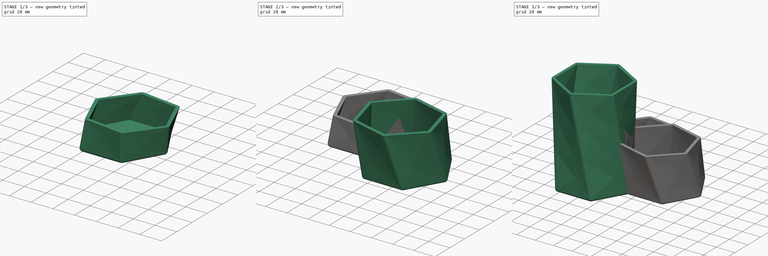
[diagram: build sequence overview — one tinted view per stage of 3, left to right]
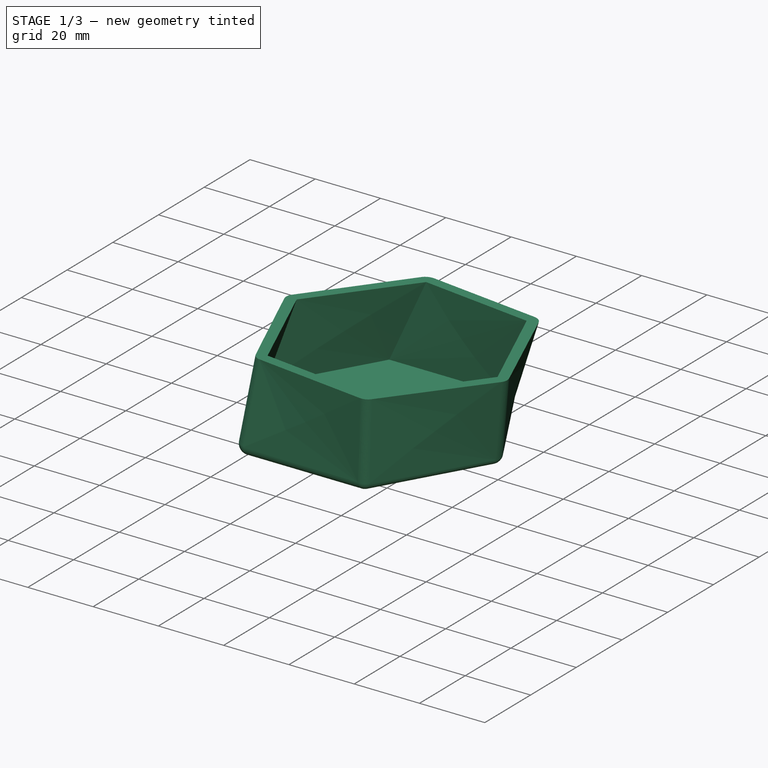
[diagram: stage 1 of 3 — iso view after this stage's code; geometry added in this stage tinted green]
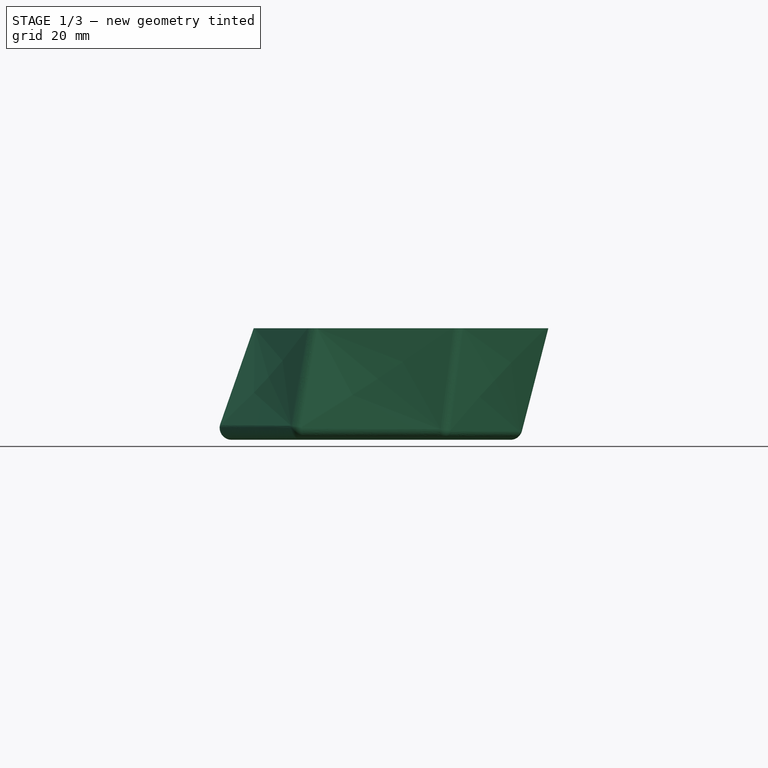
[diagram: stage 1 of 3 — front view after this stage's code; geometry added in this stage tinted green]
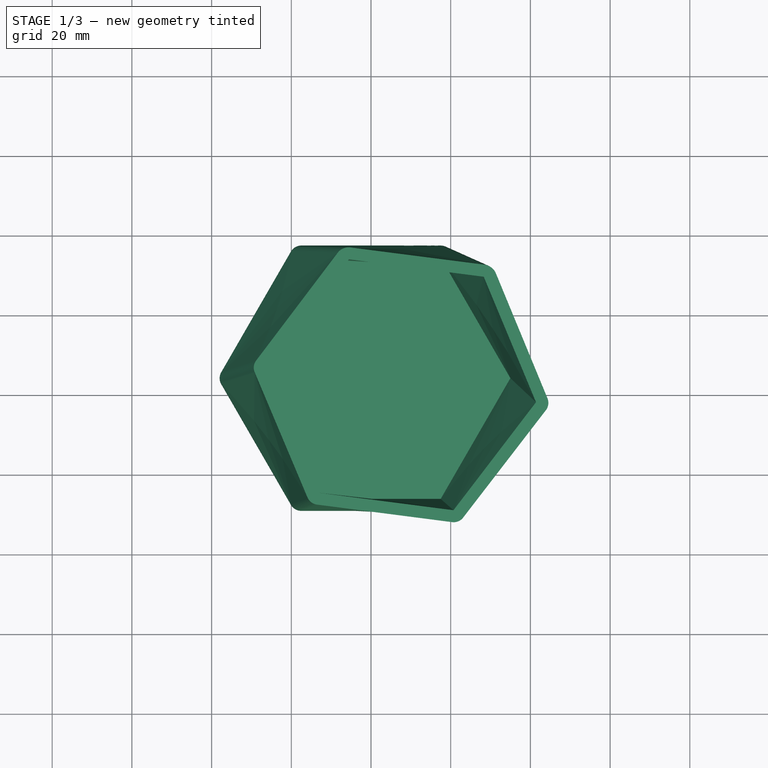
[diagram: stage 1 of 3 — top view after this stage's code; geometry added in this stage tinted green]
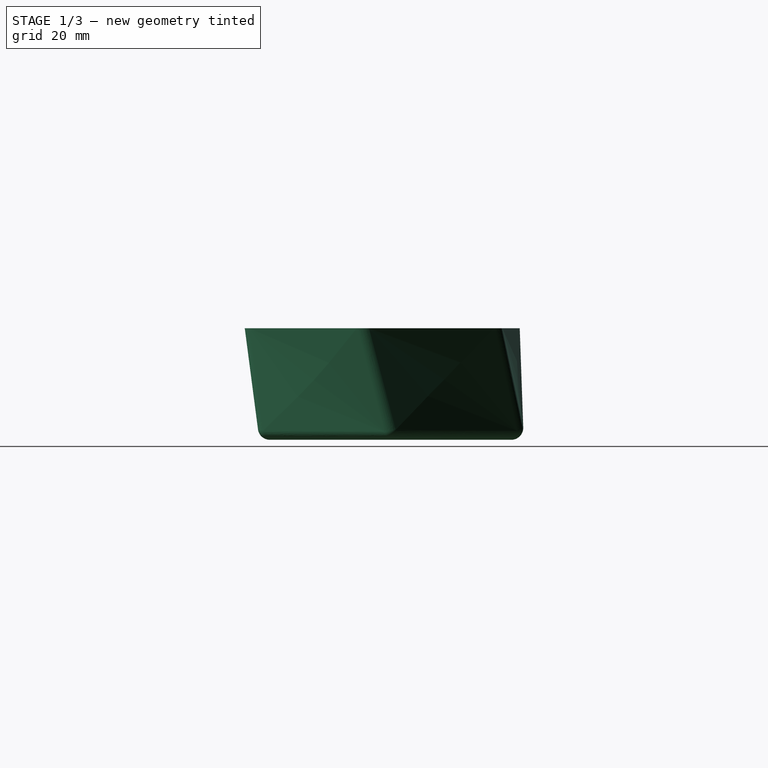
[diagram: stage 1 of 3 — right view after this stage's code; geometry added in this stage tinted green]
FCSTD DOCUMENT  (FreeCAD 0.19R24267 +99 (Git))
Label: 笔筒
License: All rights reserved
LicenseURL: http://en.wikipedia.org/wiki/All_rights_reserved
objects: Sketcher::SketchObject×6, PartDesign::Plane×3, PartDesign::Body×3, Part::Loft×3, Part::Thickness×3
note: 18 computed .brp shape members not serialized (recipe doc carries the construction recipe); baked Part::Feature solids carry a one-line shape summary decoded from their .brp

FEATURE [Sketcher::SketchObject] Sketch004
  FullyConstrained = false
  MapMode = 5
  Support = -> [XY_Plane002]
  sketch-geometry (9):
    g0: LineSegment StartX=-17.4938 StartY=30.3769 StartZ=0 EndX=17.485 EndY=30.3769 EndZ=0
    g1: LineSegment StartX=17.485 StartY=30.3769 StartZ=0 EndX=35.2119 EndY=60.7254 EndZ=0
    g2: LineSegment StartX=17.485 StartY=30.3769 StartZ=0 EndX=34.9745 EndY=60.6695 EndZ=0
    g3: LineSegment StartX=34.9745 StartY=60.6695 StartZ=0 EndX=17.485 EndY=90.9621 EndZ=0
    g4: LineSegment StartX=17.485 StartY=90.9621 StartZ=0 EndX=-17.4938 EndY=90.9621 EndZ=0
    g5: LineSegment StartX=-17.4938 StartY=90.9621 StartZ=0 EndX=-34.9832 EndY=60.6695 EndZ=0
    g6: LineSegment StartX=-34.9832 StartY=60.6695 StartZ=0 EndX=-17.4938 EndY=30.3769 EndZ=0
    g7: LineSegment StartX=-17.4938 StartY=30.3769 StartZ=0 EndX=17.485 EndY=30.3769 EndZ=0
    g8: Circle CenterX=-0.0043755 CenterY=60.6695 CenterZ=0 NormalX=0 NormalY=0 NormalZ=1 AngleXU=0 Radius=34.9788
  constraints (20):
    c: Horizontal(g0)
    c: Coincident(g0,g1)
    c: DistanceX(g0) = -17.4938
    c: DistanceY(g0) = 30.3769
    c: DistanceX(g0) = 17.485
    c: Coincident(g2,g3)
    c: Coincident(g3,g4)
    c: Coincident(g4,g5)
    c: Coincident(g5,g6)
    c: Coincident(g6,g7)
    c: Coincident(g7,g2)
    c: Equal(g2, g3-g7) x5
    c: PointOnObject(g2,g8)
    c: PointOnObject(g3,g8)
    c: PointOnObject(g4,g8)
    c: PointOnObject(g5,g8)
    c: PointOnObject(g6,g8)
    c: PointOnObject(g7,g8)
    c: Coincident(g6,g0)
    c: Coincident(g2,g0)
FEATURE [PartDesign::Plane] DatumPlane002
  AttachmentOffset = pos=(0,0,25) rot=(0,0,1;0rad)
  Length = 87.9715
  MapMode = 5
  Placement = pos=(0,0,25) rot=(0,0,1;0rad)
  ResizeMode = 0
  Support = -> [XY_Plane002]
  Width = 133.976
FEATURE [Sketcher::SketchObject] Sketch005
  FullyConstrained = true
  MapMode = 5
  Placement = pos=(0,0,25) rot=(0,0,1;0rad)
  Support = -> [DatumPlane002]
  sketch-geometry (9):
    g0: GeomPoint X=-13.1246 Y=31.4838 Z=0
    g1: GeomPoint X=20.7032 Y=27.1078 Z=0
    g2: LineSegment StartX=20.7032 StartY=27.1078 StartZ=0 EndX=41.4068 EndY=54.2155 EndZ=0
    g3: LineSegment StartX=41.4068 StartY=54.2155 StartZ=0 EndX=28.2826 EndY=85.6992 EndZ=0
    g4: LineSegment StartX=28.2826 StartY=85.6992 StartZ=0 EndX=-5.54517 EndY=90.0752 EndZ=0
    g5: LineSegment StartX=-5.54517 StartY=90.0752 StartZ=0 EndX=-26.2488 EndY=62.9675 EndZ=0
    g6: LineSegment StartX=-26.2488 StartY=62.9675 StartZ=0 EndX=-13.1246 EndY=31.4838 EndZ=0
    g7: LineSegment StartX=-13.1246 StartY=31.4838 StartZ=0 EndX=20.7032 EndY=27.1078 EndZ=0
    g8: Circle CenterX=7.579 CenterY=58.5915 CenterZ=0 NormalX=0 NormalY=0 NormalZ=1 AngleXU=0 Radius=34.1097
  constraints (19):
    c: DistanceX(g0) = -13.1246
    c: DistanceY(g0) = 31.4838
    c: DistanceX(g1) = 20.7032
    c: DistanceY(g1) = 27.1078
    c: Coincident(g2,g3)
    c: Coincident(g3,g4)
    c: Coincident(g4,g5)
    c: Coincident(g5,g6)
    c: Coincident(g6,g7)
    c: Coincident(g7,g2)
    c: Equal(g2, g3-g7) x5
    c: PointOnObject(g2,g8)
    c: PointOnObject(g3,g8)
    c: PointOnObject(g4,g8)
    c: PointOnObject(g5,g8)
    c: PointOnObject(g6,g8)
    c: PointOnObject(g7,g8)
    c: Coincident(g6,g0)
    c: Coincident(g2,g1)
FEATURE [PartDesign::Body] Body002
  Group = -> [Sketch004,DatumPlane002,Sketch005]
  Origin = -> Origin002
FEATURE [Part::Loft] Loft002
  Closed = false
  MaxDegree = 5
  Ruled = false
  Sections = -> [Sketch004,Sketch005]
  Solid = true
FEATURE [Part::Thickness] Thickness002
  Faces = -> Loft002 [Face8]
  Intersection = false
  Join = 0
  Mode = 0
  Placement = pos=(0,3.6,0) rot=(0,0,1;0rad)
  SelfIntersection = false
  Value = 3
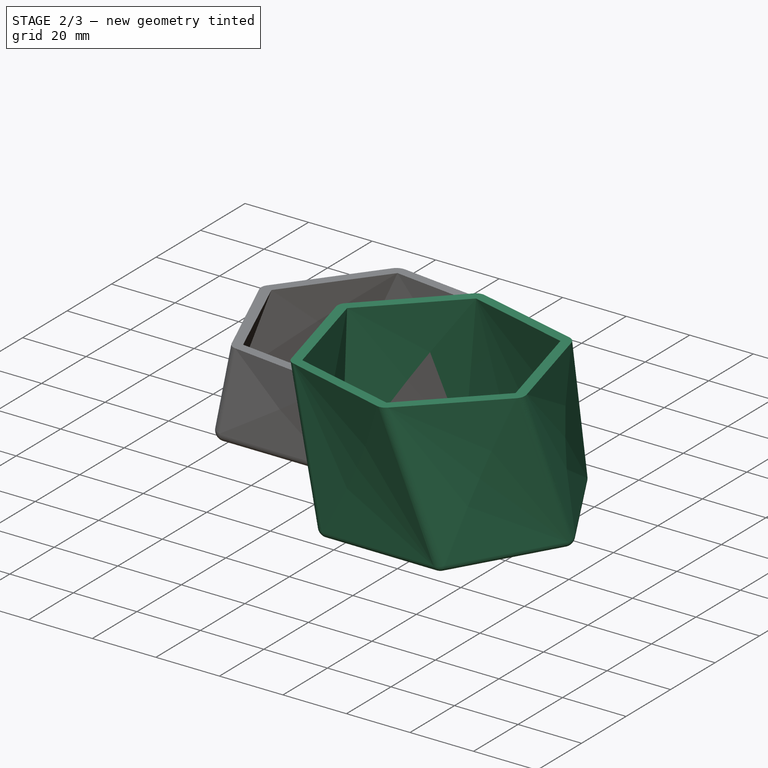
[diagram: stage 2 of 3 — iso view after this stage's code; geometry added in this stage tinted green]
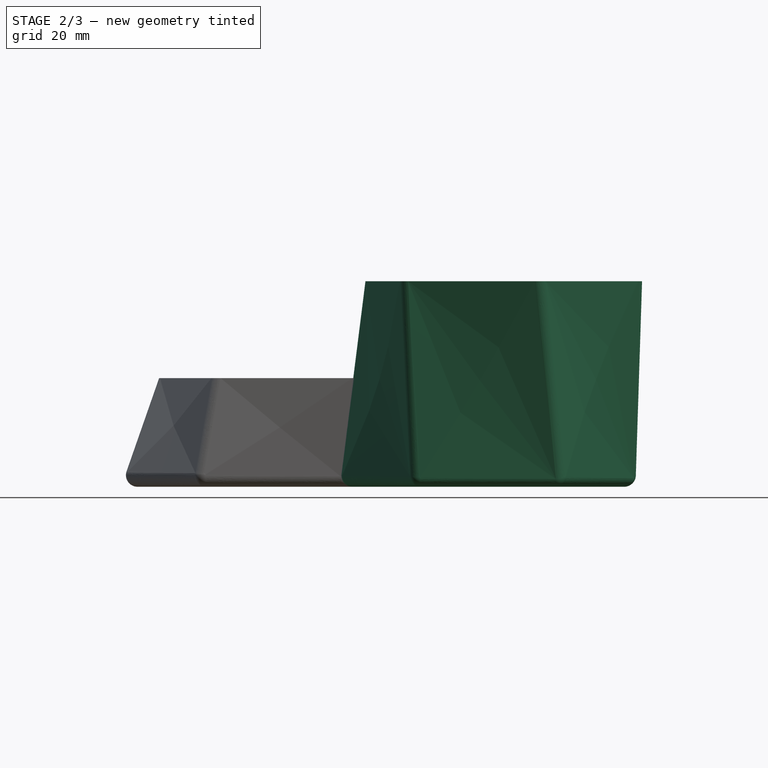
[diagram: stage 2 of 3 — front view after this stage's code; geometry added in this stage tinted green]
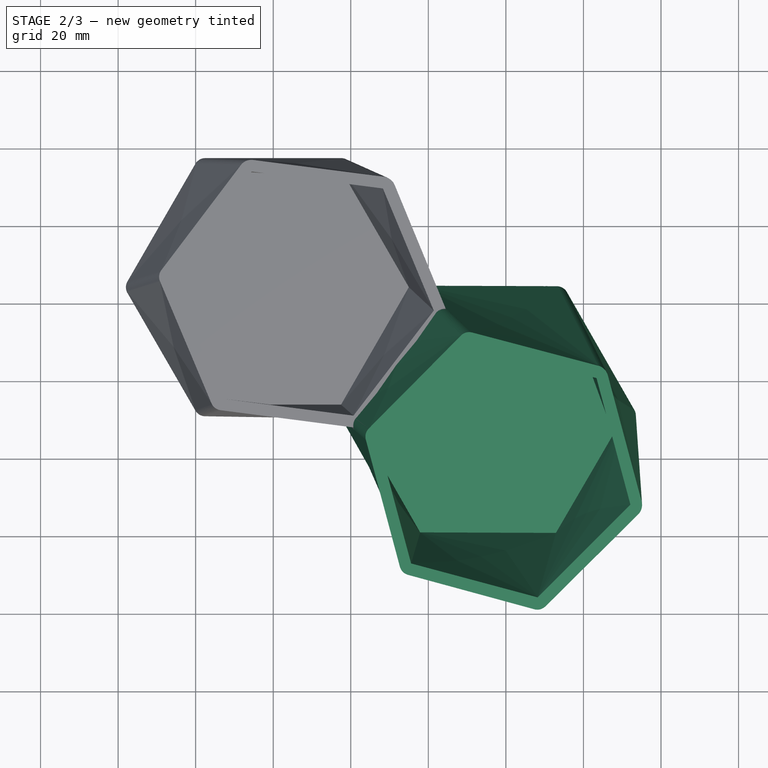
[diagram: stage 2 of 3 — top view after this stage's code; geometry added in this stage tinted green]
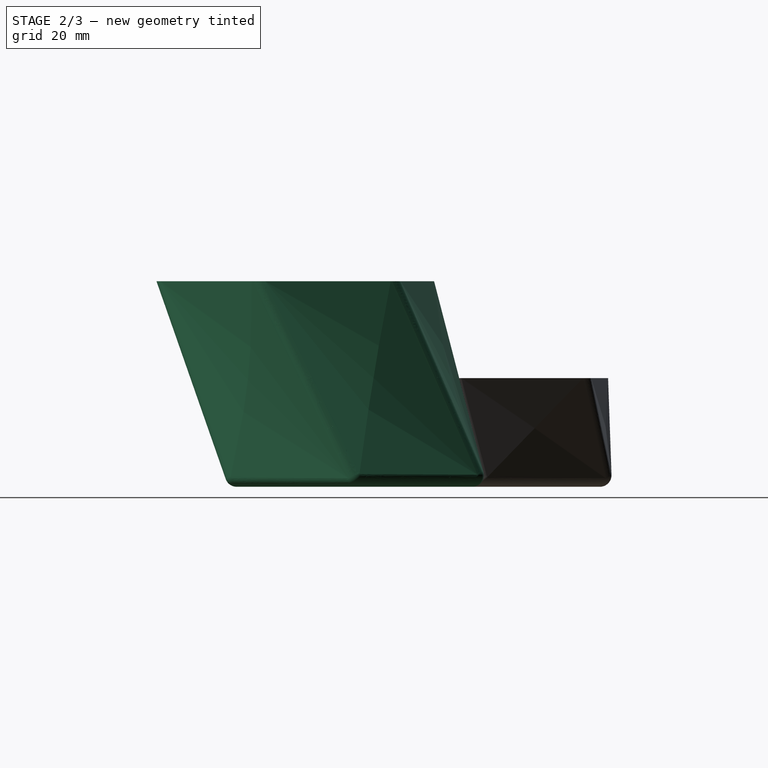
[diagram: stage 2 of 3 — right view after this stage's code; geometry added in this stage tinted green]
FEATURE [Sketcher::SketchObject] Sketch002
  FullyConstrained = false
  MapMode = 5
  Support = -> [XY_Plane001]
  sketch-geometry (7):
    g0: LineSegment StartX=87.6105 StartY=30.2446 StartZ=0 EndX=70.2252 EndY=60.6213 EndZ=0
    g1: LineSegment StartX=70.2252 StartY=60.6213 StartZ=0 EndX=35.2254 EndY=60.7536 EndZ=0
    g2: LineSegment StartX=35.2254 StartY=60.7536 StartZ=0 EndX=17.611 EndY=30.509 EndZ=0
    g3: LineSegment StartX=17.611 StartY=30.509 StartZ=0 EndX=34.9964 EndY=0.13221 EndZ=0
    g4: LineSegment StartX=34.9964 StartY=0.13221 StartZ=0 EndX=69.9962 EndY=0 EndZ=0
    g5: LineSegment StartX=69.9962 StartY=0 StartZ=0 EndX=87.6105 EndY=30.2446 EndZ=0
    g6: Circle CenterX=52.6108 CenterY=30.3768 CenterZ=0 NormalX=0 NormalY=0 NormalZ=1 AngleXU=0 Radius=35
  constraints (15):
    c: Coincident(g0,g1)
    c: Coincident(g1,g2)
    c: Coincident(g2,g3)
    c: Coincident(g3,g4)
    c: Coincident(g4,g5)
    c: Coincident(g5,g0)
    c: Equal(g0, g1-g5) x5
    c: PointOnObject(g0,g6)
    c: PointOnObject(g1,g6)
    c: PointOnObject(g2,g6)
    c: PointOnObject(g3,g6)
    c: PointOnObject(g4,g6)
    c: PointOnObject(g5,g6)
    c: Distance(g2,g0) = 70
    c: PointOnObject(g4,g-1)
FEATURE [PartDesign::Plane] DatumPlane001
  AttachmentOffset = pos=(0,0,50) rot=(0,0,1;0rad)
  Length = 134.01
  MapMode = 5
  Placement = pos=(0,0,50) rot=(0,0,1;0rad)
  ResizeMode = 0
  Support = -> [XY_Plane001]
  Width = 105.547
FEATURE [Sketcher::SketchObject] Sketch003
  FullyConstrained = true
  MapMode = 5
  Placement = pos=(0,0,50) rot=(0,0,1;0rad)
  Support = -> [DatumPlane001]
  sketch-geometry (7):
    g0: LineSegment StartX=65.3109 StartY=-17.5001 StartZ=0 EndX=89.2163 EndY=6.40534 EndZ=0
    g1: LineSegment StartX=89.2163 StartY=6.40534 StartZ=0 EndX=80.4664 EndY=39.0608 EndZ=0
    g2: LineSegment StartX=80.4664 StartY=39.0608 StartZ=0 EndX=47.8109 EndY=47.8108 EndZ=0
    g3: LineSegment StartX=47.8109 StartY=47.8108 StartZ=0 EndX=23.9055 EndY=23.9054 EndZ=0
    g4: LineSegment StartX=23.9055 StartY=23.9054 StartZ=0 EndX=32.6554 EndY=-8.75004 EndZ=0
    g5: LineSegment StartX=32.6554 StartY=-8.75004 StartZ=0 EndX=65.3109 EndY=-17.5001 EndZ=0
    g6: Circle CenterX=56.5609 CenterY=15.1554 CenterZ=0 NormalX=0 NormalY=0 NormalZ=1 AngleXU=0 Radius=33.8074
  constraints (17):
    c: Coincident(g0,g1)
    c: Coincident(g1,g2)
    c: Coincident(g2,g3)
    c: Coincident(g3,g4)
    c: Coincident(g4,g5)
    c: Coincident(g5,g0)
    c: Equal(g0, g1-g5) x5
    c: PointOnObject(g0,g6)
    c: PointOnObject(g1,g6)
    c: PointOnObject(g2,g6)
    c: PointOnObject(g3,g6)
    c: PointOnObject(g4,g6)
    c: PointOnObject(g5,g6)
    c: DistanceX(g3) = 23.9055
    c: DistanceY(g3) = 23.9054
    c: DistanceX(g4) = 32.6554
    c: DistanceY(g4) = -8.75004
FEATURE [PartDesign::Body] Body001
  Group = -> [Sketch002,DatumPlane001,Sketch003]
  Origin = -> Origin001
FEATURE [Part::Loft] Loft001
  Closed = false
  MaxDegree = 5
  Ruled = false
  Sections = -> [Sketch002,Sketch003]
  Solid = true
FEATURE [Part::Thickness] Thickness001
  Faces = -> Loft001 [Face8]
  Intersection = false
  Join = 0
  Mode = 0
  Placement = pos=(2.9,0.9,0) rot=(0,0,1;0rad)
  SelfIntersection = false
  Value = 3
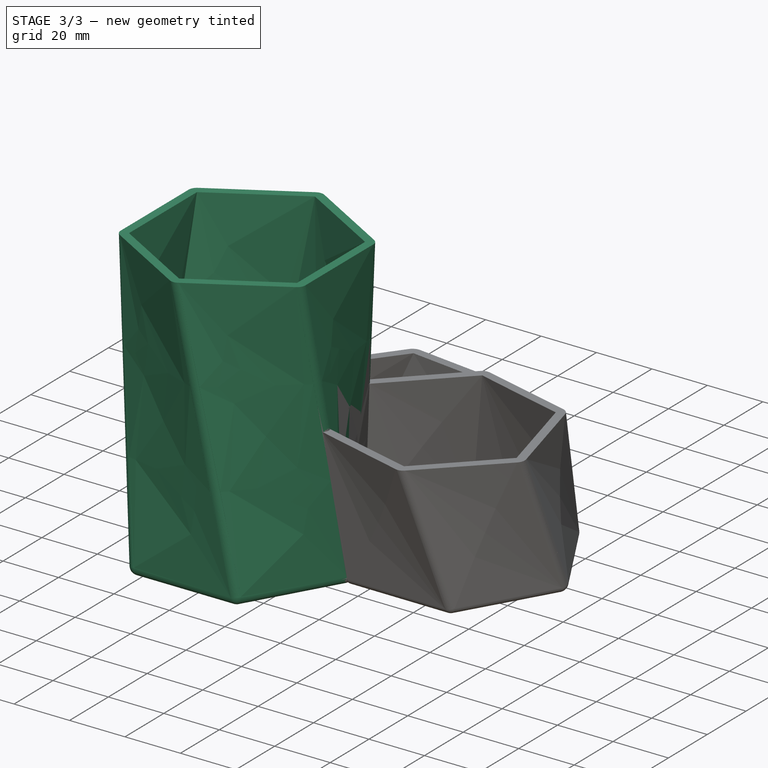
[diagram: stage 3 of 3 — iso view after this stage's code; geometry added in this stage tinted green]
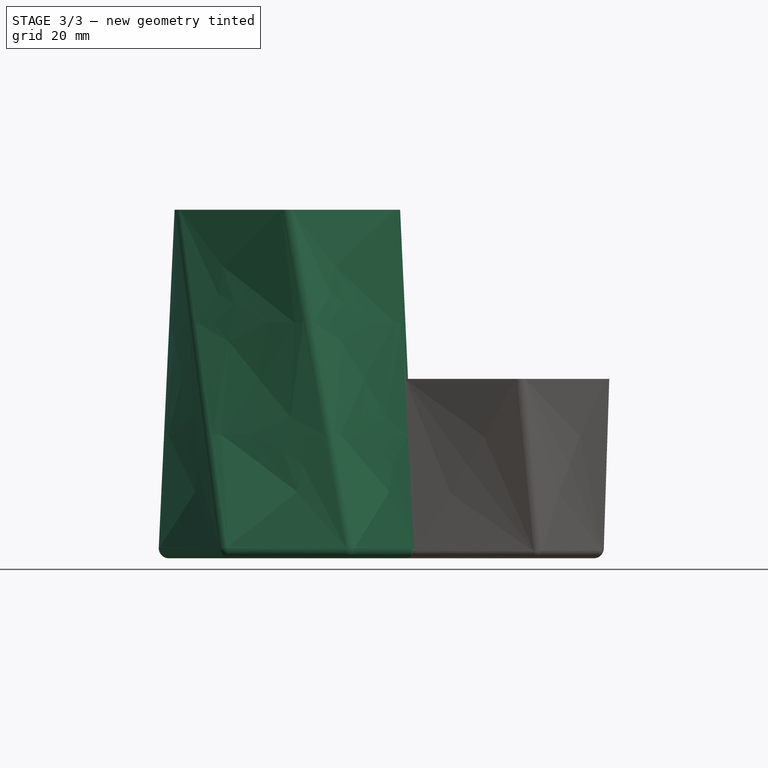
[diagram: stage 3 of 3 — front view after this stage's code; geometry added in this stage tinted green]
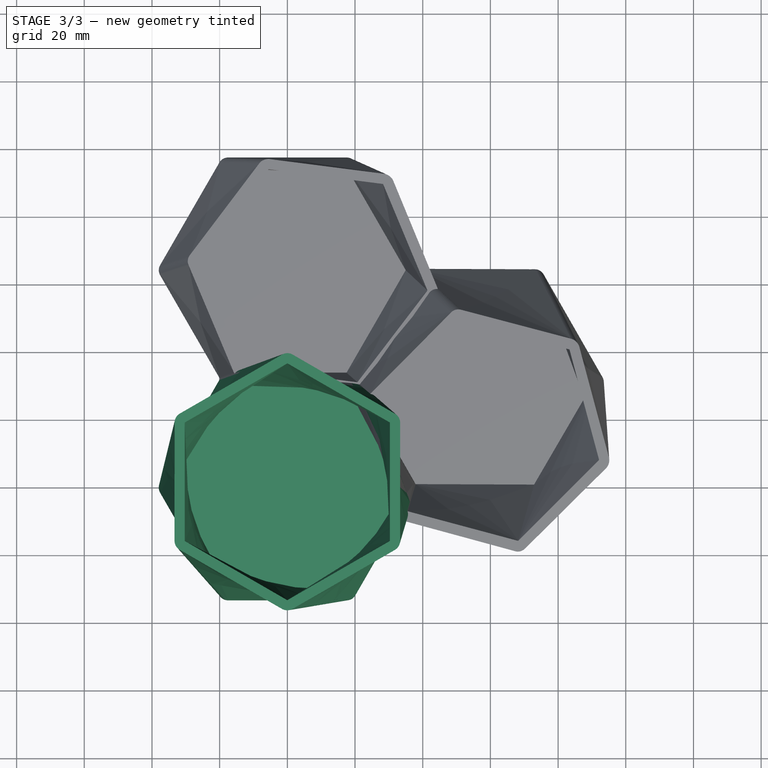
[diagram: stage 3 of 3 — top view after this stage's code; geometry added in this stage tinted green]
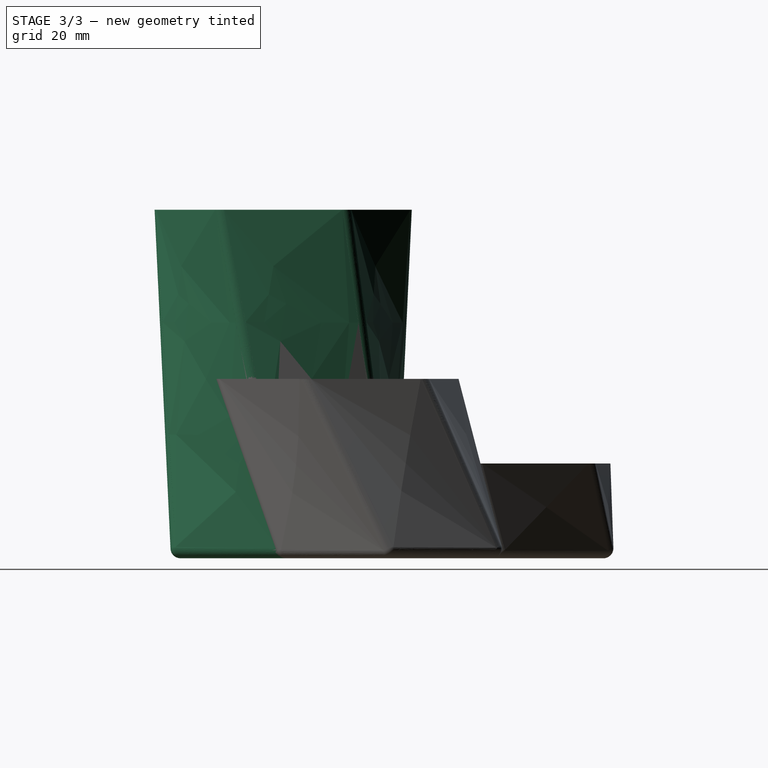
[diagram: stage 3 of 3 — right view after this stage's code; geometry added in this stage tinted green]
FEATURE [Sketcher::SketchObject] Sketch
  FullyConstrained = true
  MapMode = 5
  Support = -> [XY_Plane]
  sketch-geometry (7):
    g0: LineSegment StartX=35 StartY=0 StartZ=0 EndX=17.5 EndY=30.3109 EndZ=0
    g1: LineSegment StartX=17.5 StartY=30.3109 StartZ=0 EndX=-17.5 EndY=30.3109 EndZ=0
    g2: LineSegment StartX=-17.5 StartY=30.3109 StartZ=0 EndX=-35 EndY=-7.1e-15 EndZ=0
    g3: LineSegment StartX=-35 StartY=-7.1e-15 StartZ=0 EndX=-17.5 EndY=-30.3109 EndZ=0
    g4: LineSegment StartX=-17.5 StartY=-30.3109 StartZ=0 EndX=17.5 EndY=-30.3109 EndZ=0
    g5: LineSegment StartX=17.5 StartY=-30.3109 StartZ=0 EndX=35 EndY=0 EndZ=0
    g6: Circle CenterX=0 CenterY=0 CenterZ=0 NormalX=0 NormalY=0 NormalZ=1 AngleXU=0 Radius=35
  constraints (16):
    c: Coincident(g0,g1)
    c: Coincident(g1,g2)
    c: Coincident(g2,g3)
    c: Coincident(g3,g4)
    c: Coincident(g4,g5)
    c: Coincident(g5,g0)
    c: Equal(g0, g1-g5) x5
    c: PointOnObject(g0,g6)
    c: PointOnObject(g1,g6)
    c: PointOnObject(g2,g6)
    c: PointOnObject(g3,g6)
    c: PointOnObject(g4,g6)
    c: PointOnObject(g5,g6)
    c: Coincident(g6,g-1)
    c: PointOnObject(g5,g-1)
    c: Distance(g1,g4) = 70
FEATURE [PartDesign::Plane] DatumPlane
  AttachmentOffset = pos=(0,0,100) rot=(0,0,1;0rad)
  Length = 84
  MapMode = 5
  Placement = pos=(0,0,100) rot=(0,0,1;0rad)
  ResizeMode = 0
  Support = -> [XY_Plane]
  Width = 84
FEATURE [Sketcher::SketchObject] Sketch001
  FullyConstrained = true
  MapMode = 5
  Placement = pos=(0,0,100) rot=(0,0,1;0rad)
  Support = -> [DatumPlane]
  sketch-geometry (7):
    g0: LineSegment StartX=0 StartY=-35 StartZ=0 EndX=30.3109 EndY=-17.5 EndZ=0
    g1: LineSegment StartX=30.3109 StartY=-17.5 StartZ=0 EndX=30.3109 EndY=17.5 EndZ=0
    g2: LineSegment StartX=30.3109 StartY=17.5 StartZ=0 EndX=0 EndY=35 EndZ=0
    g3: LineSegment StartX=0 StartY=35 StartZ=0 EndX=-30.3109 EndY=17.5 EndZ=0
    g4: LineSegment StartX=-30.3109 StartY=17.5 StartZ=0 EndX=-30.3109 EndY=-17.5 EndZ=0
    g5: LineSegment StartX=-30.3109 StartY=-17.5 StartZ=0 EndX=0 EndY=-35 EndZ=0
    g6: Circle CenterX=0 CenterY=0 CenterZ=0 NormalX=0 NormalY=0 NormalZ=1 AngleXU=0 Radius=35
  constraints (16):
    c: Coincident(g0,g1)
    c: Coincident(g1,g2)
    c: Coincident(g2,g3)
    c: Coincident(g3,g4)
    c: Coincident(g4,g5)
    c: Coincident(g5,g0)
    c: Equal(g0, g1-g5) x5
    c: PointOnObject(g0,g6)
    c: PointOnObject(g1,g6)
    c: PointOnObject(g2,g6)
    c: PointOnObject(g3,g6)
    c: PointOnObject(g4,g6)
    c: PointOnObject(g5,g6)
    c: PointOnObject(g5,g-2)
    c: Distance(g3,g0) = 70
    c: Coincident(g6,g-1)
FEATURE [PartDesign::Body] Body
  Group = -> [Sketch,DatumPlane,Sketch001]
  Origin = -> Origin
FEATURE [Part::Loft] Loft
  Closed = false
  MaxDegree = 5
  Ruled = false
  Sections = -> [Sketch,Sketch001]
  Solid = true
FEATURE [Part::Thickness] Thickness
  Faces = -> Loft [Face8]
  Intersection = false
  Join = 0
  Mode = 1
  SelfIntersection = false
  Value = 3
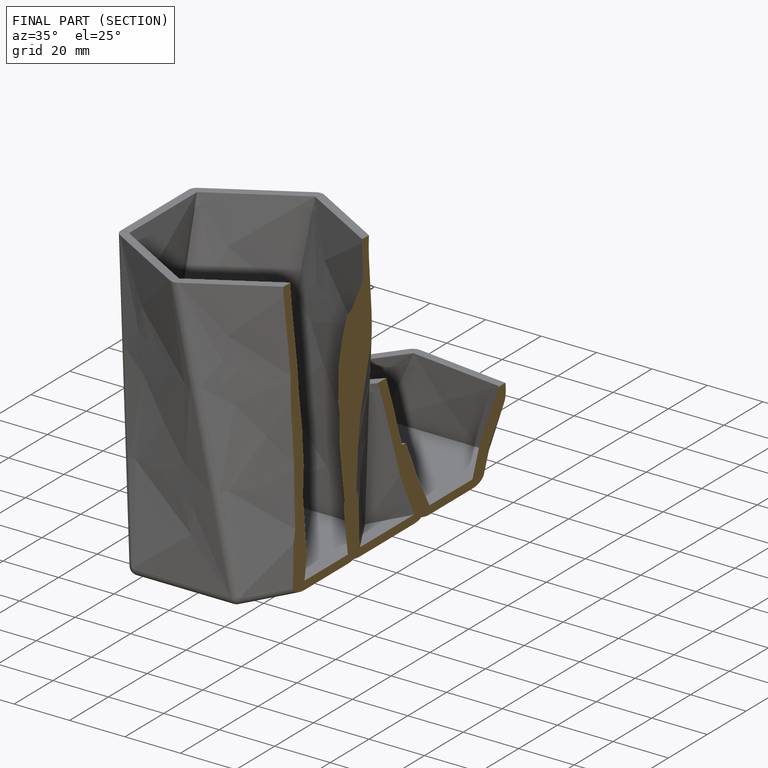
[diagram: finished part — half-section view (interior)]
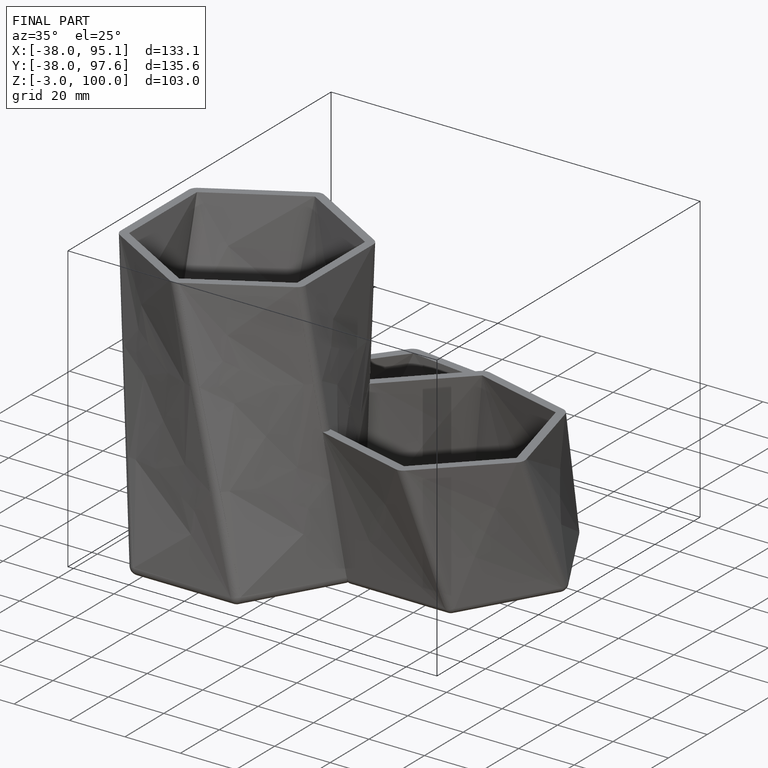
[diagram: finished part — iso view with bounding-box wireframe]
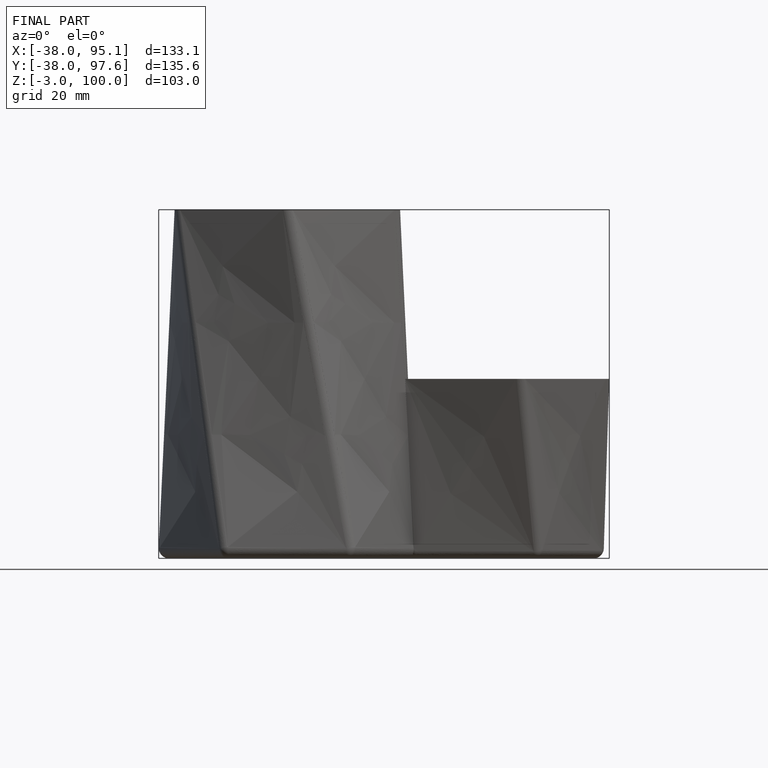
[diagram: finished part — front view with bounding-box wireframe]
